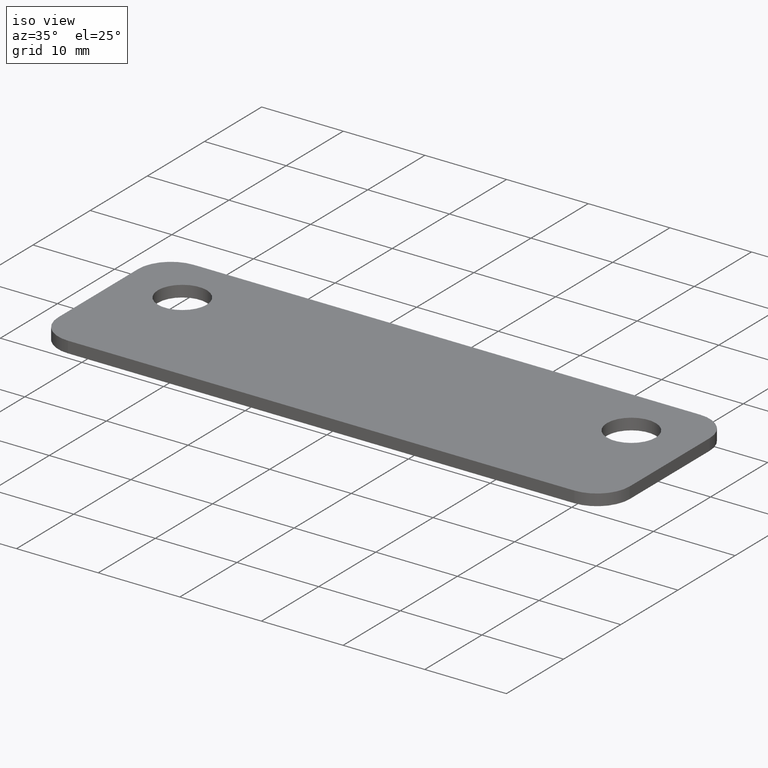
[diagram: clean part render]
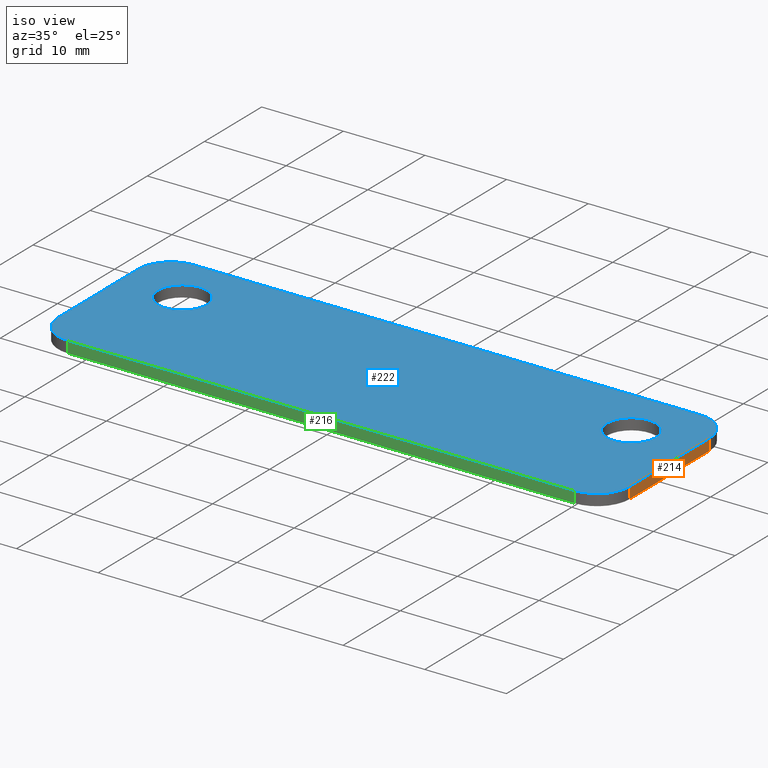
[diagram: same view with three faces highlighted in distinct colors, each labeled with its STEP entity id]
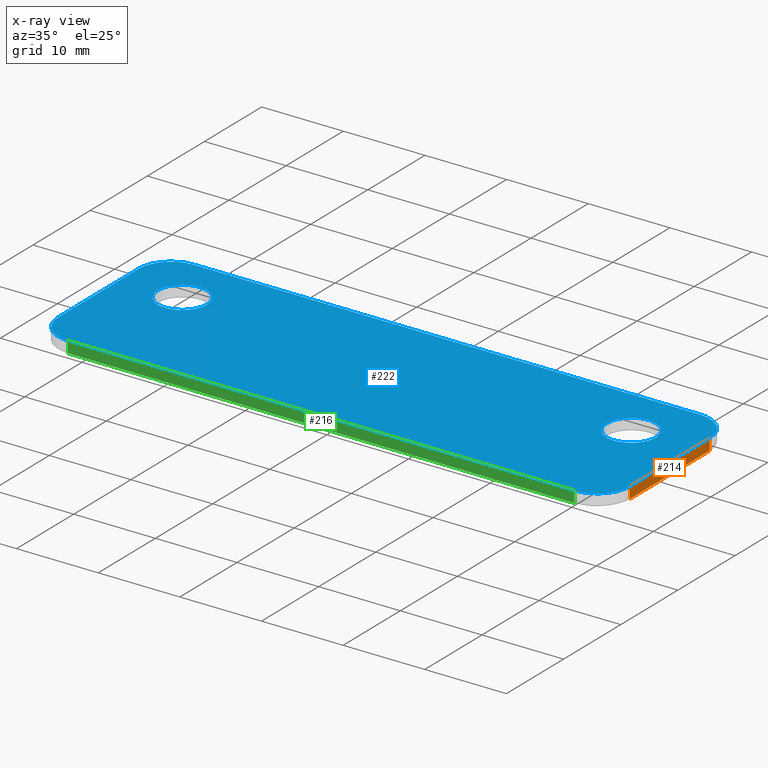
[diagram: x-ray of the same camera — body ghosted, the three highlighted faces saturated]
A machine part, iso view with three faces highlighted in distinct colors.
The next image is the same camera in x-ray (body ghosted, the three faces saturated) — at least one of them is partly hidden behind the body in this view.
Their STEP definitions:

[orange] entity #214 — the highlighted planar face has unit normal (1, -0, 0).
#15=PLANE('',#234);
#22=LINE('',#334,#38);
#23=LINE('',#337,#39);
#24=LINE('',#339,#40);
#25=LINE('',#340,#41);
#38=VECTOR('',#270,1.4);
#39=VECTOR('',#273,14.);
#40=VECTOR('',#274,14.);
#41=VECTOR('',#275,1.4);
#62=FACE_OUTER_BOUND('',#76,.T.);
#76=EDGE_LOOP('',(#157,#158,#159,#160));
#106=VERTEX_POINT('',#328);
#108=VERTEX_POINT('',#332);
#109=VERTEX_POINT('',#336);
#110=VERTEX_POINT('',#338);
#128=EDGE_CURVE('',#106,#108,#22,.T.);
#129=EDGE_CURVE('',#106,#109,#23,.T.);
#130=EDGE_CURVE('',#110,#108,#24,.T.);
#131=EDGE_CURVE('',#109,#110,#25,.T.);
#157=ORIENTED_EDGE('',*,*,#129,.F.);
#158=ORIENTED_EDGE('',*,*,#128,.T.);
#159=ORIENTED_EDGE('',*,*,#130,.F.);
#160=ORIENTED_EDGE('',*,*,#131,.F.);
#214=ADVANCED_FACE('',(#62),#15,.T.);
#234=AXIS2_PLACEMENT_3D('',#335,#271,#272);
#270=DIRECTION('',(0.,0.,1.));
#271=DIRECTION('center_axis',(1.,-3.1720657846433E-16,0.));
#272=DIRECTION('ref_axis',(0.,1.,0.));
#273=DIRECTION('',(-3.1720657846433E-16,-1.,0.));
#274=DIRECTION('',(3.1720657846433E-16,1.,0.));
#275=DIRECTION('',(0.,0.,1.));
#328=CARTESIAN_POINT('',(35.,7.00000000000001,0.));
#332=CARTESIAN_POINT('',(35.,7.00000000000001,1.4));
#334=CARTESIAN_POINT('',(35.,7.00000000000001,0.));
#335=CARTESIAN_POINT('Origin',(35.,-7.,0.));
#336=CARTESIAN_POINT('',(35.,-7.,0.));
#337=CARTESIAN_POINT('',(35.,7.,0.));
#338=CARTESIAN_POINT('',(35.,-7.,1.4));
#339=CARTESIAN_POINT('',(35.,7.,1.4));
#340=CARTESIAN_POINT('',(35.,-7.,0.));

[blue] entity #222 — the highlighted planar face has unit normal (0, 0, 1).
#20=PLANE('',#248);
#24=LINE('',#339,#40);
#28=LINE('',#351,#44);
#32=LINE('',#363,#48);
#36=LINE('',#373,#52);
#40=VECTOR('',#274,14.);
#44=VECTOR('',#286,62.);
#48=VECTOR('',#298,14.);
#52=VECTOR('',#310,62.);
#57=FACE_BOUND('',#87,.T.);
#58=FACE_BOUND('',#88,.T.);
#70=FACE_OUTER_BOUND('',#86,.T.);
#86=EDGE_LOOP('',(#195,#196,#197,#198,#199,#200,#201,#202));
#87=EDGE_LOOP('',(#203));
#88=EDGE_LOOP('',(#204));
#89=CIRCLE('',#226,3.);
#91=CIRCLE('',#229,3.);
#94=CIRCLE('',#233,4.);
#96=CIRCLE('',#237,4.);
#98=CIRCLE('',#241,4.);
#100=CIRCLE('',#245,4.);
#101=VERTEX_POINT('',#317);
#103=VERTEX_POINT('',#322);
#107=VERTEX_POINT('',#330);
#108=VERTEX_POINT('',#332);
#110=VERTEX_POINT('',#338);
#112=VERTEX_POINT('',#344);
#114=VERTEX_POINT('',#350);
#116=VERTEX_POINT('',#356);
#118=VERTEX_POINT('',#362);
#120=VERTEX_POINT('',#368);
#121=EDGE_CURVE('',#101,#101,#89,.T.);
#123=EDGE_CURVE('',#103,#103,#91,.T.);
#127=EDGE_CURVE('',#108,#107,#94,.T.);
#130=EDGE_CURVE('',#110,#108,#24,.T.);
#133=EDGE_CURVE('',#112,#110,#96,.T.);
#136=EDGE_CURVE('',#114,#112,#28,.T.);
#139=EDGE_CURVE('',#116,#114,#98,.T.);
#142=EDGE_CURVE('',#118,#116,#32,.T.);
#145=EDGE_CURVE('',#120,#118,#100,.T.);
#148=EDGE_CURVE('',#107,#120,#36,.T.);
#195=ORIENTED_EDGE('',*,*,#148,.T.);
#196=ORIENTED_EDGE('',*,*,#145,.T.);
#197=ORIENTED_EDGE('',*,*,#142,.T.);
#198=ORIENTED_EDGE('',*,*,#139,.T.);
#199=ORIENTED_EDGE('',*,*,#136,.T.);
#200=ORIENTED_EDGE('',*,*,#133,.T.);
#201=ORIENTED_EDGE('',*,*,#130,.T.);
#202=ORIENTED_EDGE('',*,*,#127,.T.);
#203=ORIENTED_EDGE('',*,*,#121,.T.);
#204=ORIENTED_EDGE('',*,*,#123,.T.);
#222=ADVANCED_FACE('',(#70,#57,#58),#20,.T.);
#226=AXIS2_PLACEMENT_3D('',#318,#253,#254);
#229=AXIS2_PLACEMENT_3D('',#323,#259,#260);
#233=AXIS2_PLACEMENT_3D('',#333,#268,#269);
#237=AXIS2_PLACEMENT_3D('',#345,#280,#281);
#241=AXIS2_PLACEMENT_3D('',#357,#292,#293);
#245=AXIS2_PLACEMENT_3D('',#369,#304,#305);
#248=AXIS2_PLACEMENT_3D('',#375,#313,#314);
#253=DIRECTION('center_axis',(0.,0.,-1.));
#254=DIRECTION('ref_axis',(-1.,0.,0.));
#259=DIRECTION('center_axis',(0.,0.,-1.));
#260=DIRECTION('ref_axis',(-1.,0.,0.));
#268=DIRECTION('center_axis',(0.,0.,1.));
#269=DIRECTION('ref_axis',(-1.,-2.77555756156289E-16,0.));
#274=DIRECTION('',(3.1720657846433E-16,1.,0.));
#280=DIRECTION('center_axis',(0.,0.,1.));
#281=DIRECTION('ref_axis',(0.,1.,0.));
#286=DIRECTION('',(1.,0.,0.));
#292=DIRECTION('center_axis',(0.,0.,1.));
#293=DIRECTION('ref_axis',(1.,2.7755575615629E-16,0.));
#298=DIRECTION('',(6.34413156928661E-16,-1.,0.));
#304=DIRECTION('center_axis',(0.,0.,1.));
#305=DIRECTION('ref_axis',(0.,-1.,0.));
#310=DIRECTION('',(-1.,-1.43254583822601E-16,0.));
#313=DIRECTION('center_axis',(0.,0.,1.));
#314=DIRECTION('ref_axis',(1.,0.,0.));
#317=CARTESIAN_POINT('',(30.5,4.,1.4));
#318=CARTESIAN_POINT('Origin',(27.5,4.,1.4));
#322=CARTESIAN_POINT('',(-24.5,4.,1.4));
#323=CARTESIAN_POINT('Origin',(-27.5,4.,1.4));
#330=CARTESIAN_POINT('',(31.,11.,1.4));
#332=CARTESIAN_POINT('',(35.,7.00000000000001,1.4));
#333=CARTESIAN_POINT('Origin',(31.,7.,1.4));
#338=CARTESIAN_POINT('',(35.,-7.,1.4));
#339=CARTESIAN_POINT('',(35.,7.,1.4));
#344=CARTESIAN_POINT('',(31.,-11.,1.4));
#345=CARTESIAN_POINT('Origin',(31.,-7.,1.4));
#350=CARTESIAN_POINT('',(-31.,-11.,1.4));
#351=CARTESIAN_POINT('',(31.,-11.,1.4));
#356=CARTESIAN_POINT('',(-35.,-7.,1.4));
#357=CARTESIAN_POINT('Origin',(-31.,-7.,1.4));
#362=CARTESIAN_POINT('',(-35.,7.,1.4));
#363=CARTESIAN_POINT('',(-35.,-7.,1.4));
#368=CARTESIAN_POINT('',(-31.,11.,1.4));
#369=CARTESIAN_POINT('Origin',(-31.,7.,1.4));
#373=CARTESIAN_POINT('',(-31.,11.,1.4));
#375=CARTESIAN_POINT('Origin',(2.53431726683947E-15,2.04694856167803E-15,
1.4));

[green] entity #216 — the highlighted planar face has unit normal (0, -1, 0).
#16=PLANE('',#238);
#26=LINE('',#346,#42);
#27=LINE('',#349,#43);
#28=LINE('',#351,#44);
#29=LINE('',#352,#45);
#42=VECTOR('',#282,1.4);
#43=VECTOR('',#285,62.);
#44=VECTOR('',#286,62.);
#45=VECTOR('',#287,1.4);
#64=FACE_OUTER_BOUND('',#78,.T.);
#78=EDGE_LOOP('',(#165,#166,#167,#168));
#111=VERTEX_POINT('',#342);
#112=VERTEX_POINT('',#344);
#113=VERTEX_POINT('',#348);
#114=VERTEX_POINT('',#350);
#134=EDGE_CURVE('',#111,#112,#26,.T.);
#135=EDGE_CURVE('',#111,#113,#27,.T.);
#136=EDGE_CURVE('',#114,#112,#28,.T.);
#137=EDGE_CURVE('',#113,#114,#29,.T.);
#165=ORIENTED_EDGE('',*,*,#135,.F.);
#166=ORIENTED_EDGE('',*,*,#134,.T.);
#167=ORIENTED_EDGE('',*,*,#136,.F.);
#168=ORIENTED_EDGE('',*,*,#137,.F.);
#216=ADVANCED_FACE('',(#64),#16,.T.);
#238=AXIS2_PLACEMENT_3D('',#347,#283,#284);
#282=DIRECTION('',(0.,0.,1.));
#283=DIRECTION('center_axis',(0.,-1.,0.));
#284=DIRECTION('ref_axis',(1.,0.,0.));
#285=DIRECTION('',(-1.,0.,0.));
#286=DIRECTION('',(1.,0.,0.));
#287=DIRECTION('',(0.,0.,1.));
#342=CARTESIAN_POINT('',(31.,-11.,0.));
#344=CARTESIAN_POINT('',(31.,-11.,1.4));
#346=CARTESIAN_POINT('',(31.,-11.,0.));
#347=CARTESIAN_POINT('Origin',(-31.,-11.,0.));
#348=CARTESIAN_POINT('',(-31.,-11.,0.));
#349=CARTESIAN_POINT('',(31.,-11.,0.));
#350=CARTESIAN_POINT('',(-31.,-11.,1.4));
#351=CARTESIAN_POINT('',(31.,-11.,1.4));
#352=CARTESIAN_POINT('',(-31.,-11.,0.));